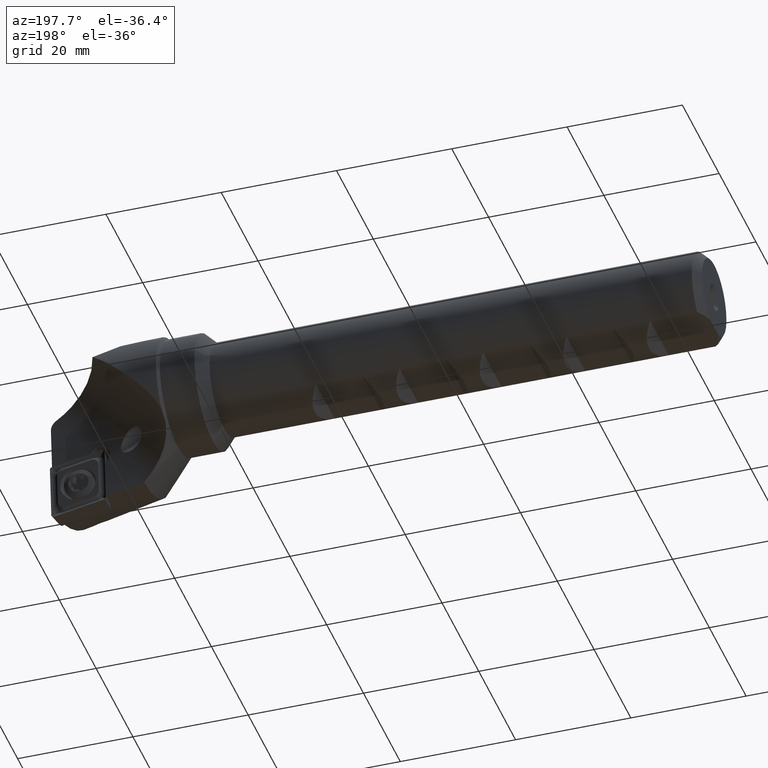
[diagram: clean part render]
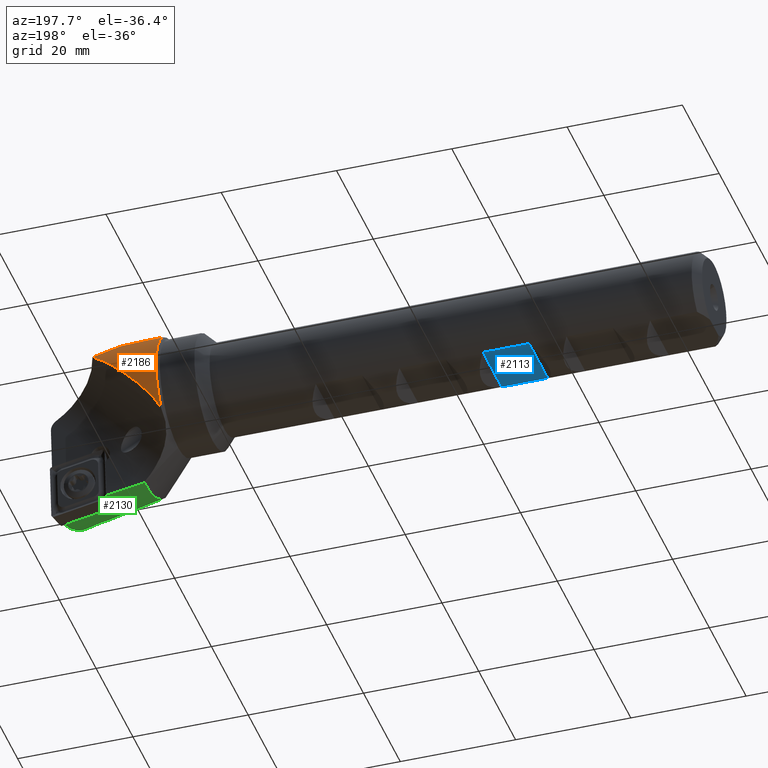
[diagram: same view with three faces highlighted in distinct colors, each labeled with its STEP entity id]
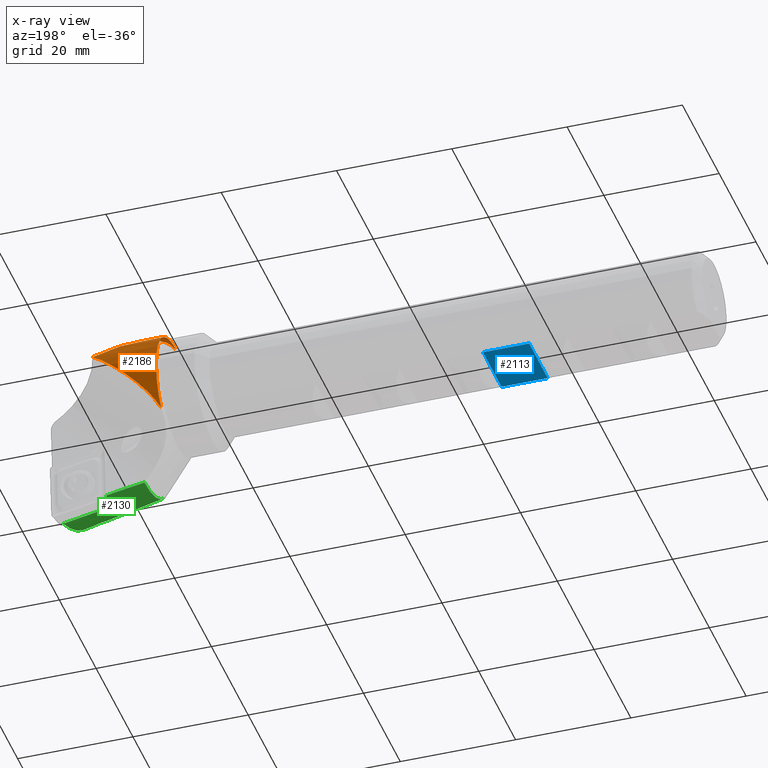
[diagram: x-ray of the same camera — body ghosted, the three highlighted faces saturated]
A machine part, auxiliary view with three faces highlighted in distinct colors.
The next image is the same camera in x-ray (body ghosted, the three faces saturated) — at least one of them is partly hidden behind the body in this view.
Their STEP definitions:

[orange] entity #2186 — the highlighted cylindrical surface (partial cylindrical patch) has radius 10.5 mm, axis along (-1, 0, 0).
#61 = CARTESIAN_POINT ( 'NONE',  ( 104.8607599060487100, 9.433491665901369700, 4.610773795077020200 ) ) ;
#105 = CARTESIAN_POINT ( 'NONE',  ( 93.50000000000001400, 7.721552911417589400, -7.115308892534371500 ) ) ;
#129 = CARTESIAN_POINT ( 'NONE',  ( 93.50000000000000000, 1.285879139104721200E-015, 10.50000000000000200 ) ) ;
#131 = CARTESIAN_POINT ( 'NONE',  ( 93.68939464408073500, 0.0000000000000000000, 10.50000000000000700 ) ) ;
#664 = AXIS2_PLACEMENT_3D ( 'NONE', #3015, #3013, #3008 ) ;
#678 = AXIS2_PLACEMENT_3D ( 'NONE', #3131, #3132, #3133 ) ;
#1181 = ORIENTED_EDGE ( 'NONE', *, *, #2420, .F. ) ;
#1182 = ORIENTED_EDGE ( 'NONE', *, *, #2255, .F. ) ;
#1183 = ORIENTED_EDGE ( 'NONE', *, *, #5104, .F. ) ;
#1184 = ORIENTED_EDGE ( 'NONE', *, *, #2227, .F. ) ;
#1333 = VERTEX_POINT ( 'NONE', #131 ) ;
#1335 = VERTEX_POINT ( 'NONE', #129 ) ;
#1359 = VERTEX_POINT ( 'NONE', #105 ) ;
#1403 = VERTEX_POINT ( 'NONE', #61 ) ;
#1716 = FACE_OUTER_BOUND ( 'NONE', #4733, .T. ) ;
#1722 = CYLINDRICAL_SURFACE ( 'NONE', #664, 10.50000000000000700 ) ;
#1773 = CIRCLE ( 'NONE', #678, 10.50000000000000700 ) ;
#1894 = LINE ( 'NONE', #3555, #1896 ) ;
#1896 = VECTOR ( 'NONE', #3556, 1000.000000000000000 ) ;
#2186 = ADVANCED_FACE ( 'NONE', ( #1716 ), #1722, .T. ) ;
#2227 = EDGE_CURVE ( 'NONE', #1335, #1359, #1773, .T. ) ;
#2255 = EDGE_CURVE ( 'NONE', #1403, #1333, #5203, .T. ) ;
#2420 = EDGE_CURVE ( 'NONE', #1333, #1335, #1894, .T. ) ;
#3008 = DIRECTION ( 'NONE',  ( 0.0000000000000000000, 0.0000000000000000000, 1.000000000000000000 ) ) ;
#3013 = DIRECTION ( 'NONE',  ( -1.000000000000000000, 0.0000000000000000000, 0.0000000000000000000 ) ) ;
#3015 = CARTESIAN_POINT ( 'NONE',  ( 115.0000000000000000, 0.0000000000000000000, 0.0000000000000000000 ) ) ;
#3131 = CARTESIAN_POINT ( 'NONE',  ( 93.50000000000000000, 0.0000000000000000000, 0.0000000000000000000 ) ) ;
#3132 = DIRECTION ( 'NONE',  ( -1.000000000000000000, -0.0000000000000000000, -0.0000000000000000000 ) ) ;
#3133 = DIRECTION ( 'NONE',  ( 0.0000000000000000000, -8.881784197001252300E-016, -1.000000000000000000 ) ) ;
#3213 = CARTESIAN_POINT ( 'NONE',  ( 98.21858256003081100, 7.622499093135140800, 8.316005086284711500 ) ) ;
#3215 = CARTESIAN_POINT ( 'NONE',  ( 104.8607599060487100, 9.433491665901369700, 4.610773795077020200 ) ) ;
#3223 = CARTESIAN_POINT ( 'NONE',  ( 94.07572846300217900, 4.124128152708043300, 10.50000000000000700 ) ) ;
#3224 = CARTESIAN_POINT ( 'NONE',  ( 93.68939464408073500, 0.0000000000000000000, 10.50000000000000700 ) ) ;
#3555 = CARTESIAN_POINT ( 'NONE',  ( 115.0000000000000000, 0.0000000000000000000, 10.50000000000000700 ) ) ;
#3556 = DIRECTION ( 'NONE',  ( -1.000000000000000000, 0.0000000000000000000, 0.0000000000000000000 ) ) ;
#3911 = CARTESIAN_POINT ( 'NONE',  ( 93.62530932292040100, 7.947218086606441500, -6.870416419585891000 ) ) ;
#3912 = CARTESIAN_POINT ( 'NONE',  ( 93.50000000000001400, 7.721552911417589400, -7.115308892534371500 ) ) ;
#3925 = CARTESIAN_POINT ( 'NONE',  ( 93.77473662639405900, 8.154868036684753500, -6.621864857033314100 ) ) ;
#3926 = CARTESIAN_POINT ( 'NONE',  ( 94.10952418197686600, 8.540362650603022100, -6.116630827239808900 ) ) ;
#3927 = CARTESIAN_POINT ( 'NONE',  ( 94.29393014264991300, 8.716660150826687200, -5.861699723409130600 ) ) ;
#3928 = CARTESIAN_POINT ( 'NONE',  ( 94.87467229591331400, 9.196556176488874400, -5.102166777201878400 ) ) ;
#3929 = CARTESIAN_POINT ( 'NONE',  ( 95.30190301838116800, 9.456698041392384000, -4.596439648636830600 ) ) ;
#3930 = CARTESIAN_POINT ( 'NONE',  ( 95.97921289746769000, 9.779845029981221000, -3.831609324025689700 ) ) ;
#3931 = CARTESIAN_POINT ( 'NONE',  ( 96.21207445599019100, 9.876358141464137900, -3.574884507398645300 ) ) ;
#3932 = CARTESIAN_POINT ( 'NONE',  ( 96.68294628411108200, 10.04633128532404900, -3.064877988635593000 ) ) ;
#3933 = CARTESIAN_POINT ( 'NONE',  ( 96.92133308190034300, 10.12005031958177700, -2.811148072129572300 ) ) ;
#3934 = CARTESIAN_POINT ( 'NONE',  ( 97.64365038661077300, 10.31061688832434200, -2.052575747547617600 ) ) ;
#3935 = CARTESIAN_POINT ( 'NONE',  ( 98.13458917230255500, 10.39709128233719700, -1.550236098317858500 ) ) ;
#3936 = CARTESIAN_POINT ( 'NONE',  ( 99.13143235308213300, 10.49763996040879400, -0.5498130185875849100 ) ) ;
#3937 = CARTESIAN_POINT ( 'NONE',  ( 99.63739466666032700, 10.51157322500585800, -0.05176614496347925500 ) ) ;
#3938 = CARTESIAN_POINT ( 'NONE',  ( 100.6649714708598800, 10.46967523391143500, 0.9390164507855945900 ) ) ;
#3939 = CARTESIAN_POINT ( 'NONE',  ( 101.1837271615213600, 10.41361400000120300, 1.428844925001855600 ) ) ;
#3940 = CARTESIAN_POINT ( 'NONE',  ( 102.7399427029818900, 10.14971572423321600, 2.858861339790812500 ) ) ;
#3941 = CARTESIAN_POINT ( 'NONE',  ( 103.7844953139171800, 9.845379119761297200, 3.768065599887441900 ) ) ;
#3942 = CARTESIAN_POINT ( 'NONE',  ( 104.8607599060487100, 9.433491665901369700, 4.610773795077020200 ) ) ;
#4733 = EDGE_LOOP ( 'NONE', ( #1181, #1182, #1183, #1184 ) ) ;
#5104 = EDGE_CURVE ( 'NONE', #1359, #1403, #5155, .T. ) ;
#5155 = B_SPLINE_CURVE_WITH_KNOTS ( 'NONE', 3,
 ( #3912, #3911, #3925, #3926, #3927, #3928, #3929, #3930, #3931, #3932, #3933, #3934, #3935, #3936, #3937, #3938, #3939, #3940, #3941, #3942 ),
 .UNSPECIFIED., .F., .F.,
 ( 4, 2, 2, 2, 2, 2, 2, 2, 2, 4 ),
 ( 0.0009989057051025826800, 0.002066228463037964600, 0.003133551220973346000, 0.005268196736844108500, 0.006335519494779503400, 0.007402842252714897400, 0.009537487768585716600, 0.01167213328445653200, 0.01380677880032734800, 0.01807606983206898000 ),
 .UNSPECIFIED. ) ;
#5203 =( BOUNDED_CURVE ( )  B_SPLINE_CURVE ( 3, ( #3215, #3213, #3223, #3224 ),
 .UNSPECIFIED., .F., .F. ) 
 B_SPLINE_CURVE_WITH_KNOTS ( ( 4, 4 ),
 ( 5.113435149623500200, 6.229611063560902600 ),
 .UNSPECIFIED. ) 
 CURVE ( )  GEOMETRIC_REPRESENTATION_ITEM ( )  RATIONAL_B_SPLINE_CURVE ( ( 1.000000000000000000, 0.8988461416796577100, 0.8988461416796577100, 1.000000000000000000 ) ) 
 REPRESENTATION_ITEM ( '' )  );

[blue] entity #2113 — the highlighted planar face has unit normal (0, 0, 1).
#94 = CARTESIAN_POINT ( 'NONE',  ( 30.50000000000000000, 5.055689863905817200, -6.199999999999997500 ) ) ;
#95 = CARTESIAN_POINT ( 'NONE',  ( 38.50000000000000000, 5.055689863905820800, -6.199999999999997500 ) ) ;
#501 = CARTESIAN_POINT ( 'NONE',  ( 38.50000000000000000, -5.055689863905819000, -6.199999999999997500 ) ) ;
#1097 = ORIENTED_EDGE ( 'NONE', *, *, #2246, .F. ) ;
#1098 = ORIENTED_EDGE ( 'NONE', *, *, #5129, .F. ) ;
#1099 = ORIENTED_EDGE ( 'NONE', *, *, #2247, .T. ) ;
#1100 = ORIENTED_EDGE ( 'NONE', *, *, #2209, .F. ) ;
#1369 = VERTEX_POINT ( 'NONE', #95 ) ;
#1370 = VERTEX_POINT ( 'NONE', #94 ) ;
#1406 = VERTEX_POINT ( 'NONE', #2356 ) ;
#1421 = VERTEX_POINT ( 'NONE', #501 ) ;
#1574 = FACE_OUTER_BOUND ( 'NONE', #4714, .T. ) ;
#1751 = LINE ( 'NONE', #3083, #1752 ) ;
#1752 = VECTOR ( 'NONE', #3084, 1000.000000000000000 ) ;
#1796 = LINE ( 'NONE', #3198, #1801 ) ;
#1798 = LINE ( 'NONE', #3201, #1803 ) ;
#1801 = VECTOR ( 'NONE', #3204, 1000.000000000000000 ) ;
#1803 = VECTOR ( 'NONE', #3206, 1000.000000000000000 ) ;
#2024 = AXIS2_PLACEMENT_3D ( 'NONE', #2742, #2748, #2749 ) ;
#2113 = ADVANCED_FACE ( 'NONE', ( #1574 ), #2746, .F. ) ;
#2209 = EDGE_CURVE ( 'NONE', #1369, #1370, #1751, .T. ) ;
#2246 = EDGE_CURVE ( 'NONE', #1421, #1369, #1796, .T. ) ;
#2247 = EDGE_CURVE ( 'NONE', #1406, #1370, #1798, .T. ) ;
#2356 = CARTESIAN_POINT ( 'NONE',  ( 30.50000000000000000, -5.055689863905817200, -6.199999999999997500 ) ) ;
#2742 = CARTESIAN_POINT ( 'NONE',  ( 30.50000000000000000, -18.69999999999999900, -6.199999999999997500 ) ) ;
#2746 = PLANE ( 'NONE',  #2024 ) ;
#2748 = DIRECTION ( 'NONE',  ( -0.0000000000000000000, 0.0000000000000000000, 1.000000000000000000 ) ) ;
#2749 = DIRECTION ( 'NONE',  ( 1.000000000000000000, 0.0000000000000000000, 0.0000000000000000000 ) ) ;
#3083 = CARTESIAN_POINT ( 'NONE',  ( -3.175455607189903200, 5.055689863905819000, -6.199999999999997500 ) ) ;
#3084 = DIRECTION ( 'NONE',  ( -1.000000000000000000, -0.0000000000000000000, -0.0000000000000000000 ) ) ;
#3198 = CARTESIAN_POINT ( 'NONE',  ( 38.50000000000000000, -18.69999999999999900, -6.199999999999997500 ) ) ;
#3201 = CARTESIAN_POINT ( 'NONE',  ( 30.50000000000000000, -18.69999999999999900, -6.199999999999997500 ) ) ;
#3204 = DIRECTION ( 'NONE',  ( -0.0000000000000000000, 1.000000000000000000, -0.0000000000000000000 ) ) ;
#3206 = DIRECTION ( 'NONE',  ( -0.0000000000000000000, 1.000000000000000000, -0.0000000000000000000 ) ) ;
#4025 = CARTESIAN_POINT ( 'NONE',  ( -3.175455607189903200, -5.055689863905819000, -6.199999999999997500 ) ) ;
#4026 = DIRECTION ( 'NONE',  ( 1.000000000000000000, 0.0000000000000000000, 0.0000000000000000000 ) ) ;
#4389 = LINE ( 'NONE', #4025, #4390 ) ;
#4390 = VECTOR ( 'NONE', #4026, 1000.000000000000000 ) ;
#4714 = EDGE_LOOP ( 'NONE', ( #1097, #1098, #1099, #1100 ) ) ;
#5129 = EDGE_CURVE ( 'NONE', #1406, #1421, #4389, .T. ) ;

[green] entity #2130 — the highlighted conical surface has half-angle 10 deg.
#62 = CARTESIAN_POINT ( 'NONE',  ( 113.2034228807029200, -11.77517970525515900, -14.11693082594679200 ) ) ;
#64 = CARTESIAN_POINT ( 'NONE',  ( 105.6554933045272700, -3.745522492000845600, -16.63587639942934300 ) ) ;
#65 = CARTESIAN_POINT ( 'NONE',  ( 105.6554933045272700, -1.268274174679419500, -17.00508167969256200 ) ) ;
#66 = CARTESIAN_POINT ( 'NONE',  ( 105.5001490984636100, 0.0000000000000000000, -17.02491997335149100 ) ) ;
#67 = CARTESIAN_POINT ( 'NONE',  ( 114.2125452932154800, -3.878121244571503200, -18.15148707659287200 ) ) ;
#69 = CARTESIAN_POINT ( 'NONE',  ( 98.85281575516489700, -11.49518809060169000, -10.91661202612302800 ) ) ;
#70 = CARTESIAN_POINT ( 'NONE',  ( 110.1554933045272800, -10.55557889166000700, -14.38929173475144600 ) ) ;
#72 = CARTESIAN_POINT ( 'NONE',  ( 111.3907597251063200, -11.74109563252360600, -13.72734809193403800 ) ) ;
#73 = CARTESIAN_POINT ( 'NONE',  ( 108.5767492753675200, -11.68756051889098700, -13.11543894307890100 ) ) ;
#78 = CARTESIAN_POINT ( 'NONE',  ( 98.85281575516489700, 0.0000000000000000000, -15.85281575516491300 ) ) ;
#747 = AXIS2_PLACEMENT_3D ( 'NONE', #3797, #3798, #3799 ) ;
#748 = AXIS2_PLACEMENT_3D ( 'NONE', #3805, #3806, #3807 ) ;
#973 = ORIENTED_EDGE ( 'NONE', *, *, #5068, .F. ) ;
#974 = ORIENTED_EDGE ( 'NONE', *, *, #5069, .T. ) ;
#975 = ORIENTED_EDGE ( 'NONE', *, *, #5071, .T. ) ;
#976 = ORIENTED_EDGE ( 'NONE', *, *, #5072, .T. ) ;
#977 = ORIENTED_EDGE ( 'NONE', *, *, #5073, .F. ) ;
#978 = ORIENTED_EDGE ( 'NONE', *, *, #5074, .T. ) ;
#979 = ORIENTED_EDGE ( 'NONE', *, *, #5076, .F. ) ;
#980 = ORIENTED_EDGE ( 'NONE', *, *, #5077, .T. ) ;
#981 = ORIENTED_EDGE ( 'NONE', *, *, #5064, .T. ) ;
#982 = ORIENTED_EDGE ( 'NONE', *, *, #5078, .F. ) ;
#1386 = VERTEX_POINT ( 'NONE', #78 ) ;
#1391 = VERTEX_POINT ( 'NONE', #73 ) ;
#1392 = VERTEX_POINT ( 'NONE', #72 ) ;
#1394 = VERTEX_POINT ( 'NONE', #70 ) ;
#1395 = VERTEX_POINT ( 'NONE', #69 ) ;
#1397 = VERTEX_POINT ( 'NONE', #67 ) ;
#1398 = VERTEX_POINT ( 'NONE', #66 ) ;
#1399 = VERTEX_POINT ( 'NONE', #65 ) ;
#1400 = VERTEX_POINT ( 'NONE', #64 ) ;
#1402 = VERTEX_POINT ( 'NONE', #62 ) ;
#1620 = FACE_OUTER_BOUND ( 'NONE', #4687, .T. ) ;
#1625 = CONICAL_SURFACE ( 'NONE', #2040, 18.69999999999999900, 0.1745329251994339200 ) ;
#2040 = AXIS2_PLACEMENT_3D ( 'NONE', #2805, #2804, #2800 ) ;
#2130 = ADVANCED_FACE ( 'NONE', ( #1620 ), #1625, .T. ) ;
#2800 = DIRECTION ( 'NONE',  ( 0.0000000000000000000, 0.0000000000000000000, -1.000000000000000000 ) ) ;
#2804 = DIRECTION ( 'NONE',  ( 1.000000000000000000, 0.0000000000000000000, 0.0000000000000000000 ) ) ;
#2805 = CARTESIAN_POINT ( 'NONE',  ( 115.0000000000000000, 0.0000000000000000000, 0.0000000000000000000 ) ) ;
#3770 = CARTESIAN_POINT ( 'NONE',  ( 110.1554933045272800, -10.55557889166000700, -14.38929173475144600 ) ) ;
#3771 = CARTESIAN_POINT ( 'NONE',  ( 110.0527735065778600, -10.52081081277788100, -14.39233354750643700 ) ) ;
#3775 = CARTESIAN_POINT ( 'NONE',  ( 109.9435060403438300, -10.49944087641731200, -14.38405611591886500 ) ) ;
#3776 = CARTESIAN_POINT ( 'NONE',  ( 109.7313850316185000, -10.49245071045745800, -14.34283942880654700 ) ) ;
#3777 = CARTESIAN_POINT ( 'NONE',  ( 109.6258833018734900, -10.50672588260012200, -14.30938992460686300 ) ) ;
#3778 = CARTESIAN_POINT ( 'NONE',  ( 109.4336073919362200, -10.56351069556287400, -14.22531495640830600 ) ) ;
#3779 = CARTESIAN_POINT ( 'NONE',  ( 109.3449062608556400, -10.60593389147189000, -14.17429088626921700 ) ) ;
#3780 = CARTESIAN_POINT ( 'NONE',  ( 109.1873729105793600, -10.70544374874526400, -14.06439205000894400 ) ) ;
#3781 = CARTESIAN_POINT ( 'NONE',  ( 109.1164308711650400, -10.76358674372522700, -14.00425563066758400 ) ) ;
#3782 = CARTESIAN_POINT ( 'NONE',  ( 108.9264921067968300, -10.95051438956297600, -13.81670166163955400 ) ) ;
#3783 = CARTESIAN_POINT ( 'NONE',  ( 108.8297433516770800, -11.08988295839495200, -13.68351674023992000 ) ) ;
#3784 = CARTESIAN_POINT ( 'NONE',  ( 108.6734790869739800, -11.38388589832006300, -13.40378626721824200 ) ) ;
#3785 = CARTESIAN_POINT ( 'NONE',  ( 108.6167191686612600, -11.53497946840871800, -13.26084858805111600 ) ) ;
#3786 = CARTESIAN_POINT ( 'NONE',  ( 108.5767492753675200, -11.68756051889098700, -13.11543894307890100 ) ) ;
#3790 = CARTESIAN_POINT ( 'NONE',  ( 115.0000000000000000, 0.0000000000000000000, -18.69999999999999900 ) ) ;
#3791 = DIRECTION ( 'NONE',  ( 0.9848077530122079100, 0.0000000000000000000, -0.1736481776669313000 ) ) ;
#3795 = CARTESIAN_POINT ( 'NONE',  ( 105.5001490984636100, 0.0000000000000000000, -17.02491997335149100 ) ) ;
#3796 = CARTESIAN_POINT ( 'NONE',  ( 105.5517803993857600, -0.4229059511926691600, -17.03402396475314300 ) ) ;
#3797 = CARTESIAN_POINT ( 'NONE',  ( 98.85281575516489700, 0.0000000000000000000, 0.0000000000000000000 ) ) ;
#3798 = DIRECTION ( 'NONE',  ( -1.000000000000000000, -0.0000000000000000000, -0.0000000000000000000 ) ) ;
#3799 = DIRECTION ( 'NONE',  ( 0.0000000000000000000, 0.0000000000000000000, 1.000000000000000000 ) ) ;
#3800 = CARTESIAN_POINT ( 'NONE',  ( 114.2125452932154800, -3.878121244571503200, -18.15148707659287200 ) ) ;
#3801 = CARTESIAN_POINT ( 'NONE',  ( 105.6035856609120300, -0.8458588051881081900, -17.02740815321258700 ) ) ;
#3802 = CARTESIAN_POINT ( 'NONE',  ( 105.6554933045272700, -1.268274174679419500, -17.00508167969256200 ) ) ;
#3803 = CARTESIAN_POINT ( 'NONE',  ( 114.2125452932154800, -3.878121244571503200, -18.15148707659287200 ) ) ;
#3804 = CARTESIAN_POINT ( 'NONE',  ( 111.3601352944743200, -3.833950756922712300, -17.64661609252871000 ) ) ;
#3805 = CARTESIAN_POINT ( 'NONE',  ( 105.6554933045272700, -2.914831755244693800E-032, 7.989700496867765600E-033 ) ) ;
#3806 = DIRECTION ( 'NONE',  ( -1.000000000000000000, -9.772874859926100200E-033, 8.550157603010382700E-034 ) ) ;
#3807 = DIRECTION ( 'NONE',  ( 0.0000000000000000000, -1.000000000000000000, 0.0000000000000000000 ) ) ;
#3808 = CARTESIAN_POINT ( 'NONE',  ( 113.8463510833071700, -6.811321417354659700, -17.45877259857858000 ) ) ;
#3809 = CARTESIAN_POINT ( 'NONE',  ( 108.5077792479441900, -3.789753790193559200, -17.14144245119109300 ) ) ;
#3810 = CARTESIAN_POINT ( 'NONE',  ( 105.6554933045272700, -3.745522492000845600, -16.63587639942934300 ) ) ;
#3811 = CARTESIAN_POINT ( 'NONE',  ( 111.9948581733250100, -11.75250485735026600, -13.85775612843670300 ) ) ;
#3812 = CARTESIAN_POINT ( 'NONE',  ( 111.3907597251063200, -11.74109563252360600, -13.72734809193403800 ) ) ;
#3813 = CARTESIAN_POINT ( 'NONE',  ( 113.5033988720256400, -9.495152068749760600, -16.08762082299399800 ) ) ;
#3814 = CARTESIAN_POINT ( 'NONE',  ( 113.2034228807029200, -11.77517970525515900, -14.11693082594679200 ) ) ;
#3815 = CARTESIAN_POINT ( 'NONE',  ( 111.3261680768779100, -11.62621885855125600, -13.81061606131463800 ) ) ;
#3816 = CARTESIAN_POINT ( 'NONE',  ( 111.3907597251063200, -11.74109563252360600, -13.72734809193403800 ) ) ;
#3817 = CARTESIAN_POINT ( 'NONE',  ( 112.5990823548250400, -11.76386499304703100, -13.98760307361719100 ) ) ;
#3818 = CARTESIAN_POINT ( 'NONE',  ( 113.2034228807029200, -11.77517970525515900, -14.11693082594679200 ) ) ;
#3819 = CARTESIAN_POINT ( 'NONE',  ( 102.0883767827998100, -11.56155722092432100, -11.67521465699946500 ) ) ;
#3820 = CARTESIAN_POINT ( 'NONE',  ( 98.85281575516489700, -11.49518809060169000, -10.91661202612302800 ) ) ;
#3821 = CARTESIAN_POINT ( 'NONE',  ( 111.2542408035622400, -11.51220346183111700, -13.88925426650522100 ) ) ;
#3822 = CARTESIAN_POINT ( 'NONE',  ( 111.0924389935482800, -11.28703971558806700, -14.03625395383649500 ) ) ;
#3823 = CARTESIAN_POINT ( 'NONE',  ( 111.0020247463590800, -11.17527959807584100, -14.10494399494003800 ) ) ;
#3824 = CARTESIAN_POINT ( 'NONE',  ( 110.8015539413448200, -10.96357272130532200, -14.22552104775270900 ) ) ;
#3825 = CARTESIAN_POINT ( 'NONE',  ( 110.6899120156301300, -10.86186721275667300, -14.27840893806072300 ) ) ;
#3826 = CARTESIAN_POINT ( 'NONE',  ( 110.5050615899105500, -10.72871344962210700, -14.33780601988020300 ) ) ;
#3827 = CARTESIAN_POINT ( 'NONE',  ( 110.4404753716675700, -10.68748862331145100, -14.35433547441492800 ) ) ;
#3828 = CARTESIAN_POINT ( 'NONE',  ( 110.3033765282384000, -10.61361517688617800, -14.37900802575717100 ) ) ;
#3829 = CARTESIAN_POINT ( 'NONE',  ( 110.2302506432714600, -10.58088237844938300, -14.38707796650991700 ) ) ;
#3830 = CARTESIAN_POINT ( 'NONE',  ( 110.1554933045272800, -10.55557889166000700, -14.38929173475144600 ) ) ;
#3833 = CARTESIAN_POINT ( 'NONE',  ( 105.3305731923910900, -11.62533574736470900, -12.40420655000617200 ) ) ;
#3834 = CARTESIAN_POINT ( 'NONE',  ( 108.5767492753675200, -11.68756051889098700, -13.11543894307890100 ) ) ;
#4353 = CIRCLE ( 'NONE', #747, 15.85281575516491300 ) ;
#4354 = LINE ( 'NONE', #3790, #4355 ) ;
#4355 = VECTOR ( 'NONE', #3791, 1000.000000000000000 ) ;
#4356 = CIRCLE ( 'NONE', #748, 17.05231134817724500 ) ;
#4687 = EDGE_LOOP ( 'NONE', ( #973, #974, #975, #976, #977, #978, #979, #980, #981, #982 ) ) ;
#5064 = EDGE_CURVE ( 'NONE', #1394, #1391, #5138, .T. ) ;
#5068 = EDGE_CURVE ( 'NONE', #1386, #1395, #4353, .T. ) ;
#5069 = EDGE_CURVE ( 'NONE', #1386, #1398, #4354, .T. ) ;
#5071 = EDGE_CURVE ( 'NONE', #1398, #1399, #5139, .T. ) ;
#5072 = EDGE_CURVE ( 'NONE', #1399, #1400, #4356, .T. ) ;
#5073 = EDGE_CURVE ( 'NONE', #1397, #1400, #5140, .T. ) ;
#5074 = EDGE_CURVE ( 'NONE', #1397, #1402, #5141, .T. ) ;
#5076 = EDGE_CURVE ( 'NONE', #1392, #1402, #5142, .T. ) ;
#5077 = EDGE_CURVE ( 'NONE', #1392, #1394, #5143, .T. ) ;
#5078 = EDGE_CURVE ( 'NONE', #1395, #1391, #5144, .T. ) ;
#5138 = B_SPLINE_CURVE_WITH_KNOTS ( 'NONE', 3,
 ( #3770, #3771, #3775, #3776, #3777, #3778, #3779, #3780, #3781, #3782, #3783, #3784, #3785, #3786 ),
 .UNSPECIFIED., .F., .F.,
 ( 4, 2, 2, 2, 2, 2, 4 ),
 ( 0.007119080237276116100, 0.007443688884071644400, 0.007768297530867172700, 0.008092906177662700900, 0.008417514824458230100, 0.009066732118049267500, 0.009715949411640306700 ),
 .UNSPECIFIED. ) ;
#5139 =( BOUNDED_CURVE ( )  B_SPLINE_CURVE ( 3, ( #3795, #3796, #3801, #3802 ),
 .UNSPECIFIED., .F., .F. ) 
 B_SPLINE_CURVE_WITH_KNOTS ( ( 4, 4 ),
 ( 4.603573312723700200, 4.677919621056052100 ),
 .UNSPECIFIED. ) 
 CURVE ( )  GEOMETRIC_REPRESENTATION_ITEM ( )  RATIONAL_B_SPLINE_CURVE ( ( 1.000000000000000000, 0.9995394385754237100, 0.9995394385754237100, 1.000000000000000000 ) ) 
 REPRESENTATION_ITEM ( '' )  );
#5140 = B_SPLINE_CURVE_WITH_KNOTS ( 'NONE', 3,
 ( #3803, #3804, #3809, #3810 ),
 .UNSPECIFIED., .F., .F.,
 ( 4, 4 ),
 ( 0.0003119717681087620000, 0.009003220061058669600 ),
 .UNSPECIFIED. ) ;
#5141 =( BOUNDED_CURVE ( )  B_SPLINE_CURVE ( 3, ( #3800, #3808, #3813, #3814 ),
 .UNSPECIFIED., .F., .F. ) 
 B_SPLINE_CURVE_WITH_KNOTS ( ( 4, 4 ),
 ( 1.715477478106205700, 2.196394319770053300 ),
 .UNSPECIFIED. ) 
 CURVE ( )  GEOMETRIC_REPRESENTATION_ITEM ( )  RATIONAL_B_SPLINE_CURVE ( ( 1.000000000000000000, 0.9808192699712791100, 0.9808192699712791100, 1.000000000000000000 ) ) 
 REPRESENTATION_ITEM ( '' )  );
#5142 = B_SPLINE_CURVE_WITH_KNOTS ( 'NONE', 3,
 ( #3812, #3811, #3817, #3818 ),
 .UNSPECIFIED., .F., .F.,
 ( 4, 4 ),
 ( 0.01285167468087824800, 0.01470599626651616900 ),
 .UNSPECIFIED. ) ;
#5143 = B_SPLINE_CURVE_WITH_KNOTS ( 'NONE', 3,
 ( #3816, #3815, #3821, #3822, #3823, #3824, #3825, #3826, #3827, #3828, #3829, #3830 ),
 .UNSPECIFIED., .F., .F.,
 ( 4, 2, 2, 2, 2, 4 ),
 ( 0.005229132706056549200, 0.005701619588861433400, 0.006174106471666317500, 0.006646593354471201600, 0.006882836795873658500, 0.007119080237276116100 ),
 .UNSPECIFIED. ) ;
#5144 = B_SPLINE_CURVE_WITH_KNOTS ( 'NONE', 3,
 ( #3820, #3819, #3833, #3834 ),
 .UNSPECIFIED., .F., .F.,
 ( 4, 4 ),
 ( 2.054508627328277900E-007, 0.009971437085919673800 ),
 .UNSPECIFIED. ) ;